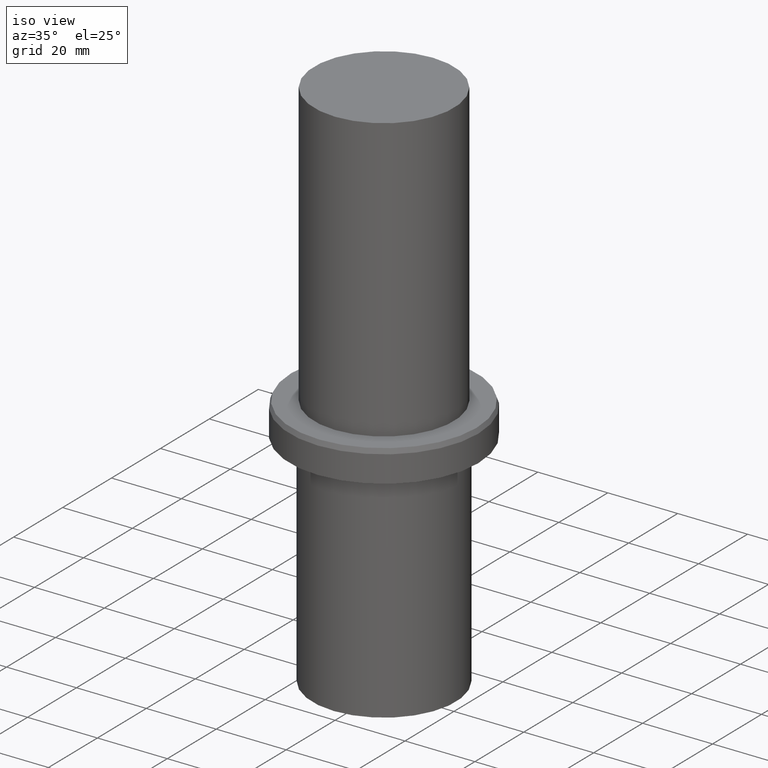
[diagram: clean part render]
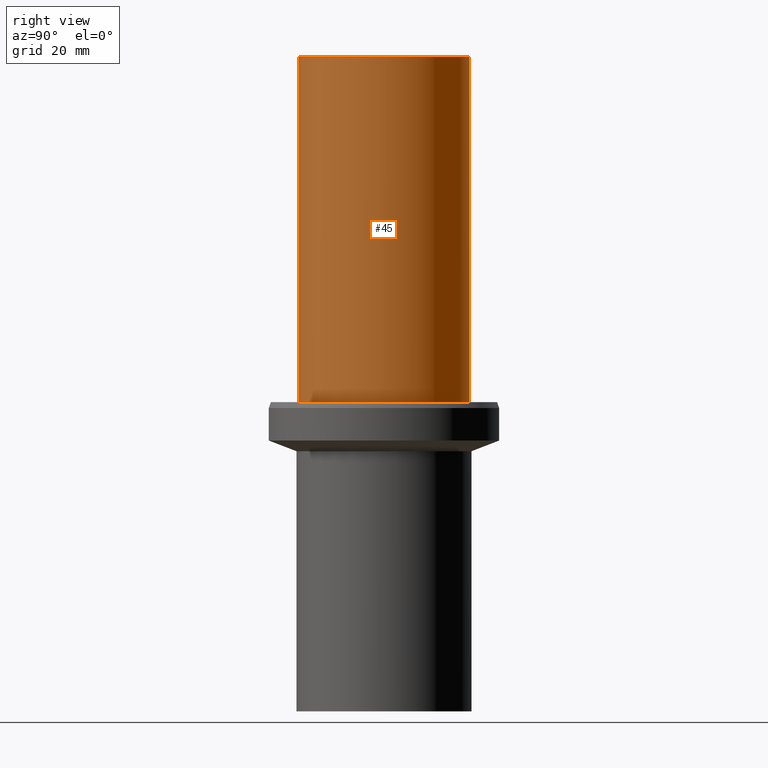
[diagram: tour spotlight — one face highlighted and labeled with its STEP entity id]
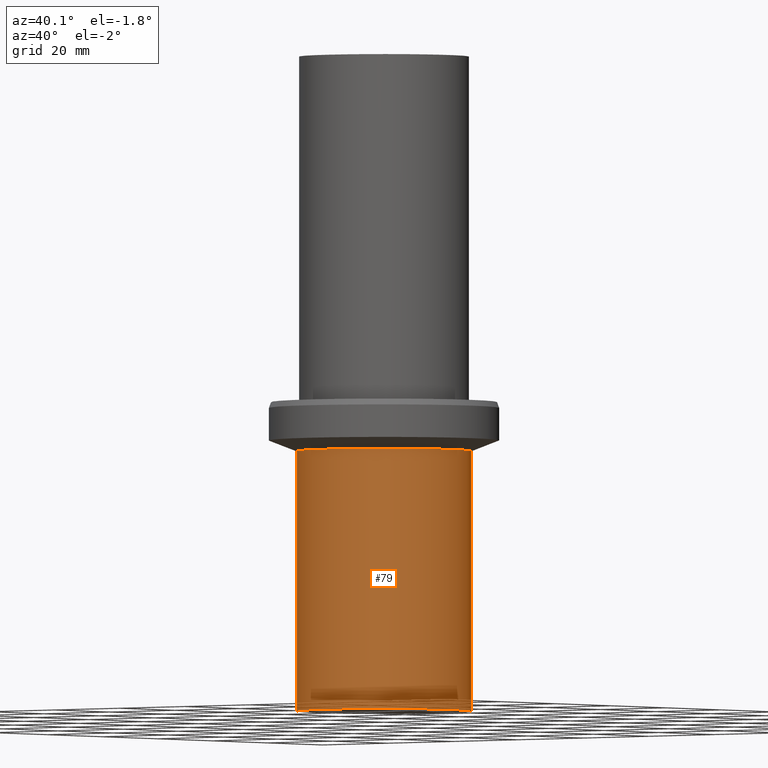
[diagram: tour spotlight — one face highlighted and labeled with its STEP entity id]
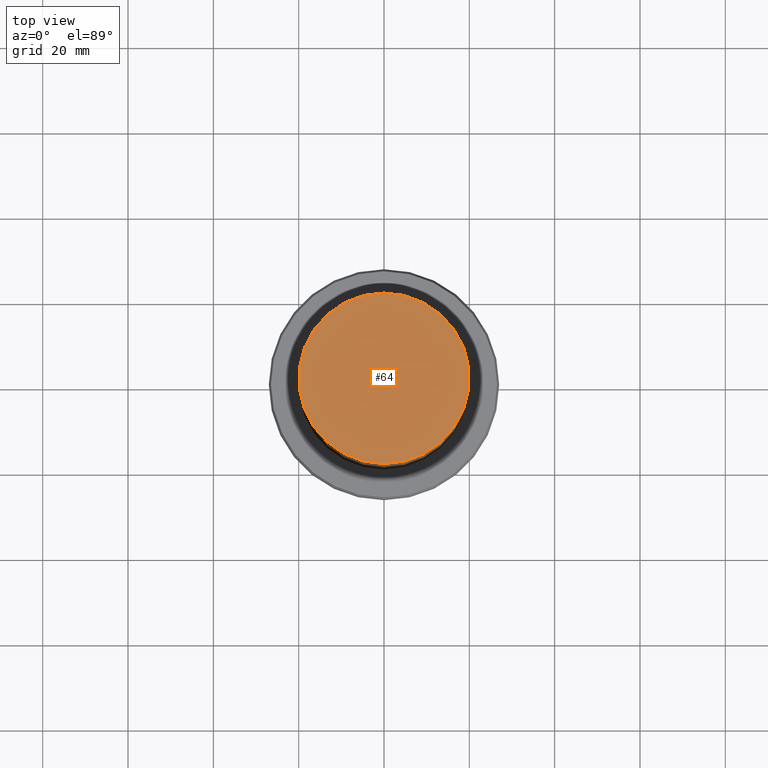
[diagram: tour spotlight — one face highlighted and labeled with its STEP entity id]
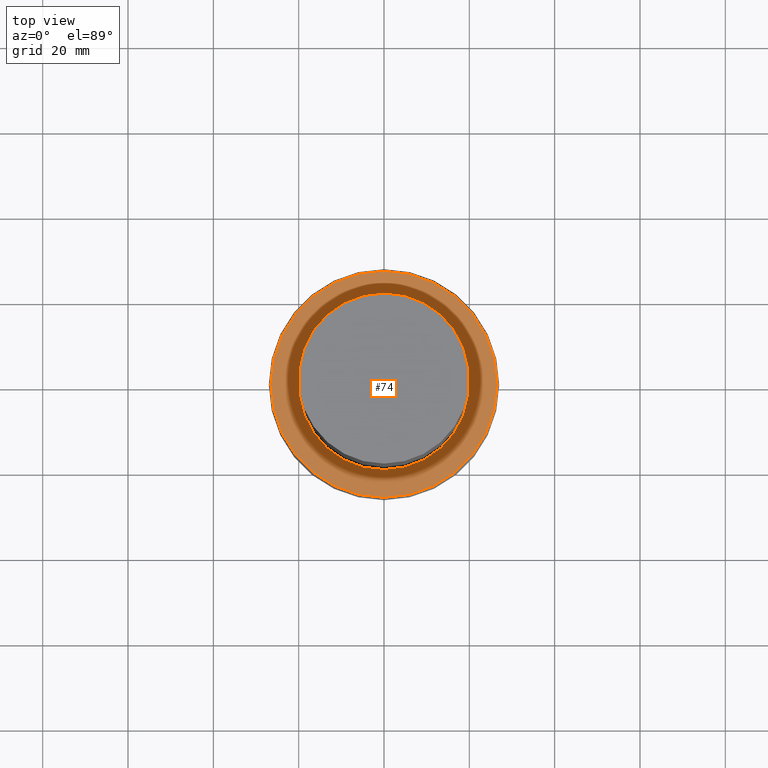
[diagram: tour spotlight — one face highlighted and labeled with its STEP entity id]
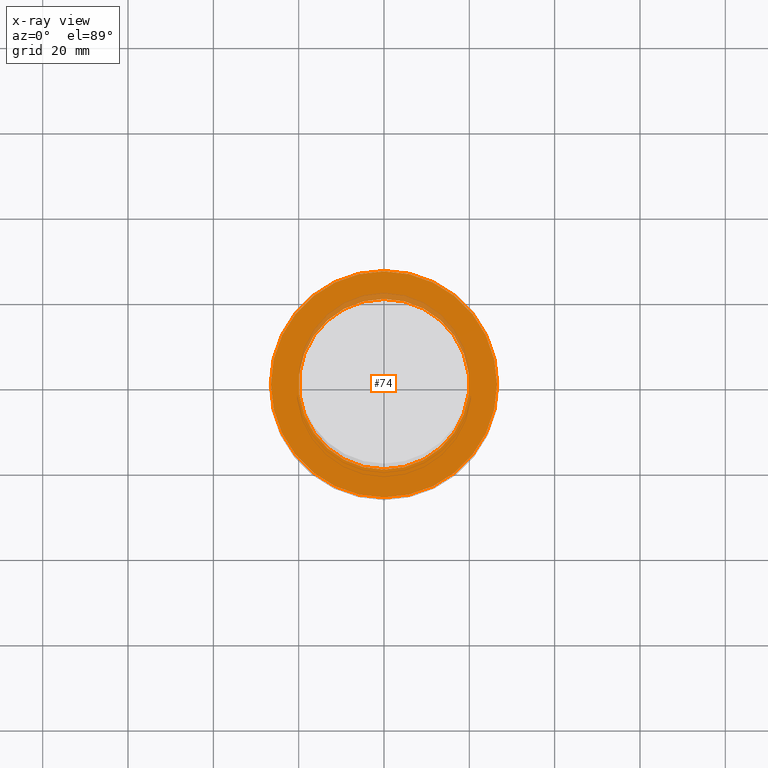
[diagram: x-ray of the same camera — body ghosted, this tour face saturated]
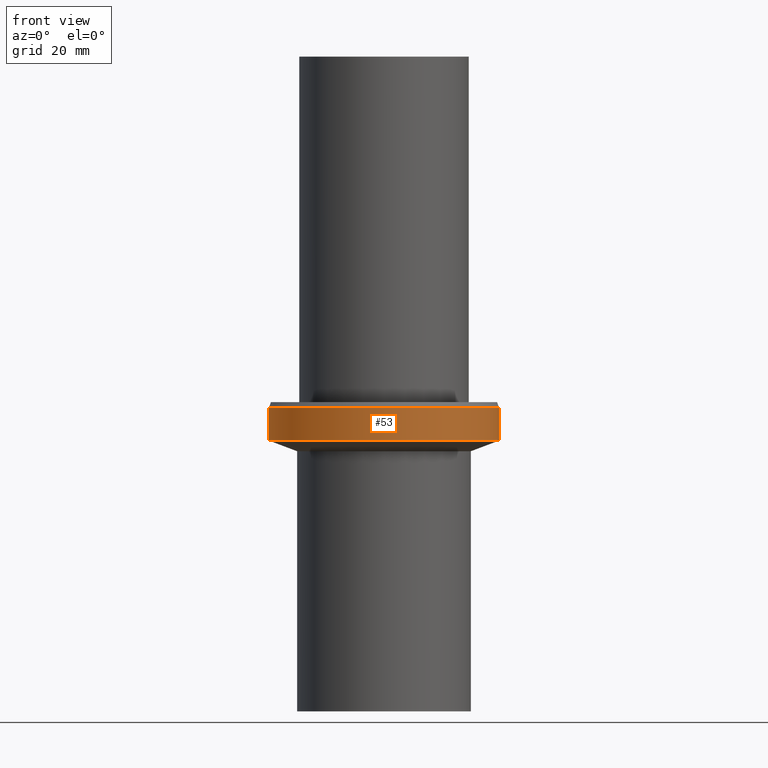
[diagram: tour spotlight — one face highlighted and labeled with its STEP entity id]
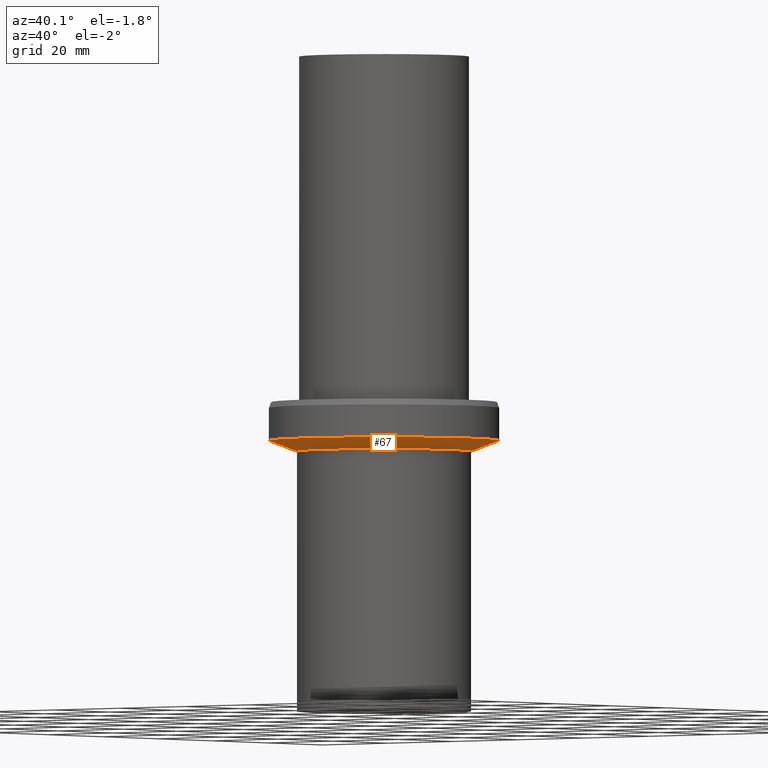
[diagram: tour spotlight — one face highlighted and labeled with its STEP entity id]
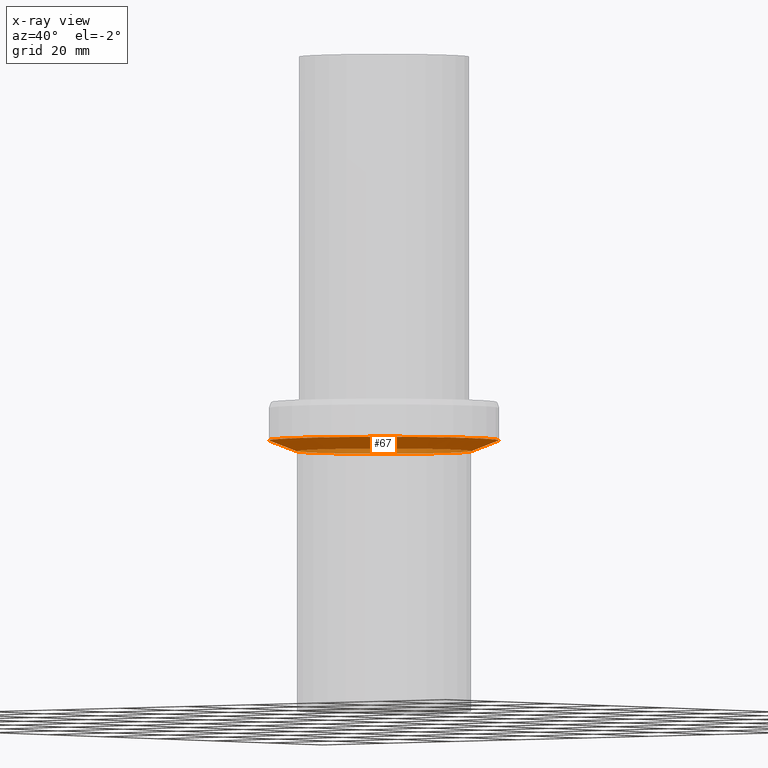
[diagram: x-ray of the same camera — body ghosted, this tour face saturated]
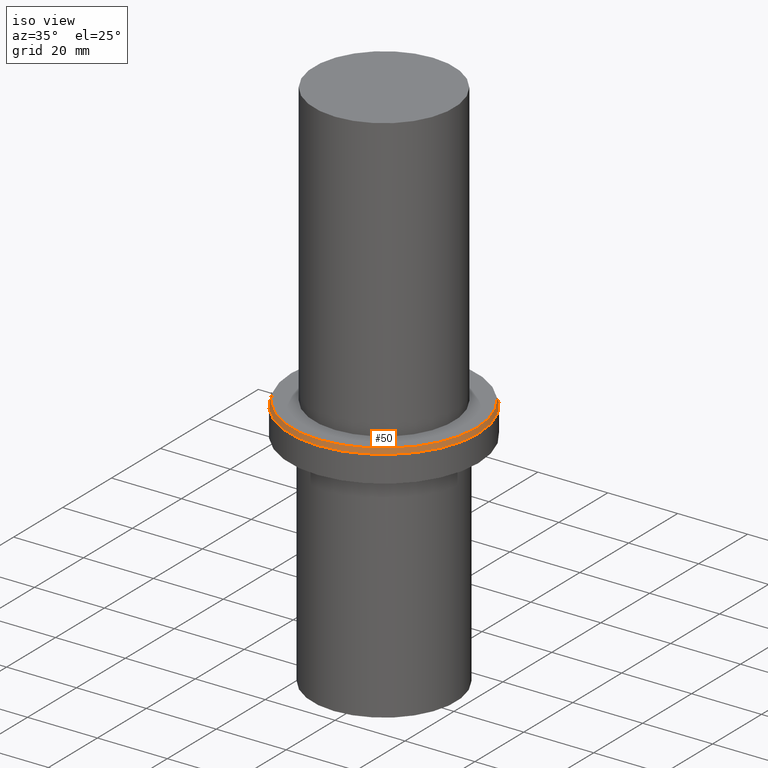
[diagram: tour spotlight — one face highlighted and labeled with its STEP entity id]
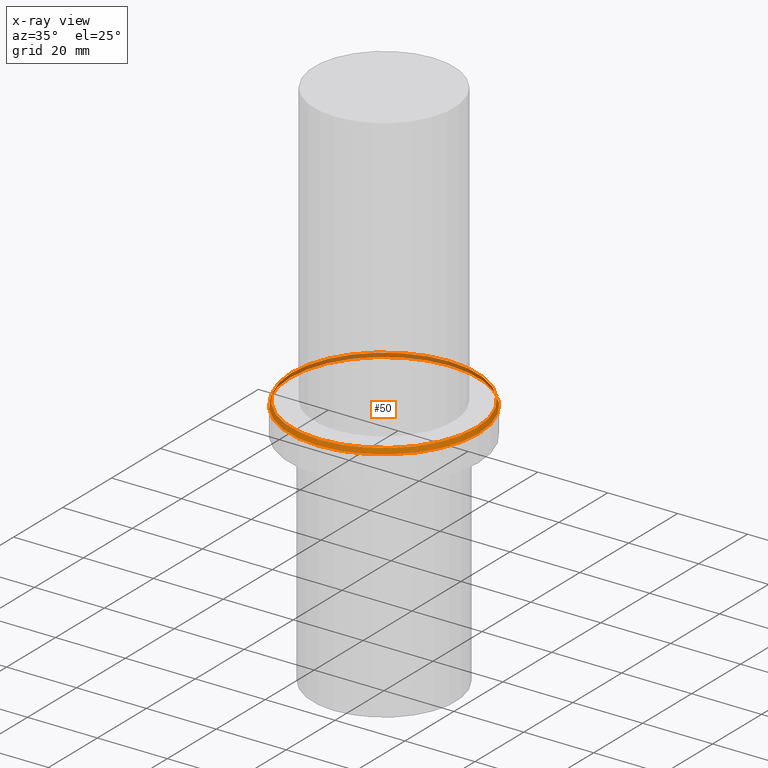
[diagram: x-ray of the same camera — body ghosted, this tour face saturated]
A machine part: a face-by-face anatomy tour. The part has 8 B-rep faces; the first image is the clean iso view, then the 7 largest visible faces are spotlighted one at a time (largest first), each with its STEP entity span.

Face 1 — right view, entity #45. In plain terms, the highlighted cylindrical surface (bore or boss wall) has radius 20 mm, axis along (0, 0, -1).
Definition (entity closure, byte-faithful):
#40=EDGE_CURVE('Unnamed[1]',#97,#97,#98,.T.);
#42=EDGE_CURVE('Unnamed[1]',#100,#100,#101,.T.);
#45=ADVANCED_FACE('Unnamed[1]',(#104,#105),#106,.T.);
#97=VERTEX_POINT('',#166);
#98=CIRCLE('',#167,20.0000000000027);
#100=VERTEX_POINT('',#170);
#101=CIRCLE('',#171,20.0000000000027);
#104=FACE_BOUND('',#175,.T.);
#105=FACE_BOUND('',#176,.T.);
#106=CYLINDRICAL_SURFACE('',#177,20.0000000000027);
#166=CARTESIAN_POINT('',(-9.39916418345572E-015,20.0000000000027,153.499999999996));
#167=AXIS2_PLACEMENT_3D('',#242,#243,#244);
#170=CARTESIAN_POINT('',(-4.439344646909E-015,20.0000000000027,72.4999999999974));
#171=AXIS2_PLACEMENT_3D('',#245,#246,#247);
#175=EDGE_LOOP('',(#249));
#176=EDGE_LOOP('',(#250));
#177=AXIS2_PLACEMENT_3D('',#251,#252,#253);
#242=CARTESIAN_POINT('',(-9.39916418345572E-015,-1.87983283669114E-014,153.499999999996));
#243=DIRECTION('',(6.12323399573677E-017,1.22464679914744E-016,-1.0));
#244=DIRECTION('',(-1.23259516440789E-032,1.0,1.22464679914744E-016));
#245=CARTESIAN_POINT('',(-4.439344646909E-015,-8.87868929381799E-015,72.4999999999974));
#246=DIRECTION('',(6.12323399573677E-017,1.22464679914744E-016,-1.0));
#247=DIRECTION('',(-1.23259516440789E-032,1.0,1.22464679914744E-016));
#249=ORIENTED_EDGE('',*,*,#42,.F.);
#250=ORIENTED_EDGE('',*,*,#40,.T.);
#251=CARTESIAN_POINT('',(-6.91925441518236E-015,-1.38385088303647E-014,112.999999999997));
#252=DIRECTION('',(6.12323399573677E-017,1.22464679914744E-016,-1.0));
#253=DIRECTION('',(-1.23259516440789E-032,1.0,1.22464679914744E-016));

Face 2 — auxiliary view, entity #79. In plain terms, the highlighted cylindrical surface (bore or boss wall) has radius 20.5 mm, axis along (0, 0, -1).
Definition (entity closure, byte-faithful):
#71=EDGE_CURVE('Unnamed[1]',#143,#143,#144,.T.);
#76=EDGE_CURVE('Unnamed[1]',#151,#151,#152,.T.);
#79=ADVANCED_FACE('Unnamed[1]',(#155,#156),#157,.T.);
#143=VERTEX_POINT('',#223);
#144=CIRCLE('',#224,20.5);
#151=VERTEX_POINT('',#233);
#152=CIRCLE('',#234,20.4999999999988);
#155=FACE_BOUND('',#238,.T.);
#156=FACE_BOUND('',#239,.T.);
#157=CYLINDRICAL_SURFACE('',#240,20.4999999999994);
#223=CARTESIAN_POINT('',(-3.73462184603165E-015,20.5,60.9910032612151));
#224=AXIS2_PLACEMENT_3D('',#292,#293,#294);
#233=CARTESIAN_POINT('',(0.0,20.4999999999988,0.0));
#234=AXIS2_PLACEMENT_3D('',#301,#302,#303);
#238=EDGE_LOOP('',(#305));
#239=EDGE_LOOP('',(#306));
#240=AXIS2_PLACEMENT_3D('',#307,#308,#309);
#292=CARTESIAN_POINT('',(-3.73462184603164E-015,-7.46924369206329E-015,60.9910032612151));
#293=DIRECTION('',(6.12323399573677E-017,1.22464679914746E-016,-1.0));
#294=DIRECTION('',(-1.23259516440783E-032,1.0,1.22464679914746E-016));
#301=CARTESIAN_POINT('',(0.0,0.0,0.0));
#302=DIRECTION('',(6.12323399573677E-017,1.22464679914753E-016,-1.0));
#303=DIRECTION('',(-1.2325951644079E-032,1.0,1.22464679914753E-016));
#305=ORIENTED_EDGE('',*,*,#76,.F.);
#306=ORIENTED_EDGE('',*,*,#71,.T.);
#307=CARTESIAN_POINT('',(-1.86731092301582E-015,-3.73462184603164E-015,30.4955016306076));
#308=DIRECTION('',(6.12323399573677E-017,1.22464679914749E-016,-1.0));
#309=DIRECTION('',(-1.23259516440787E-032,1.0,1.22464679914749E-016));

Face 3 — top view, entity #64. In plain terms, the highlighted planar face has unit normal (-0, 0, 1).
Definition (entity closure, byte-faithful):
#40=EDGE_CURVE('Unnamed[1]',#97,#97,#98,.T.);
#64=ADVANCED_FACE('Unnamed[1]',(#132),#133,.T.);
#97=VERTEX_POINT('',#166);
#98=CIRCLE('',#167,20.0000000000027);
#132=FACE_OUTER_BOUND('',#209,.T.);
#133=PLANE('',#210);
#166=CARTESIAN_POINT('',(-9.39916418345572E-015,20.0000000000027,153.499999999996));
#167=AXIS2_PLACEMENT_3D('',#242,#243,#244);
#209=EDGE_LOOP('',(#279));
#210=AXIS2_PLACEMENT_3D('',#280,#281,#282);
#242=CARTESIAN_POINT('',(-9.39916418345572E-015,-1.87983283669114E-014,153.499999999996));
#243=DIRECTION('',(6.12323399573677E-017,1.22464679914744E-016,-1.0));
#244=DIRECTION('',(-1.23259516440789E-032,1.0,1.22464679914744E-016));
#279=ORIENTED_EDGE('',*,*,#40,.F.);
#280=CARTESIAN_POINT('',(-9.39916418345575E-015,10.0000000000013,153.499999999997));
#281=DIRECTION('',(-6.12323399573677E-017,4.81944413517655E-014,1.0));
#282=DIRECTION('',(-2.94623126417595E-030,-1.0,4.81944413517655E-014));

Face 4 — top view, entity #74. An x-ray twin of the same camera follows (body ghosted, this face saturated) — the face is partly hidden behind the body. In plain terms, the highlighted planar face has unit normal (-0, -0, 1).
Definition (entity closure, byte-faithful):
#42=EDGE_CURVE('Unnamed[1]',#100,#100,#101,.T.);
#58=EDGE_CURVE('Unnamed[1]',#124,#124,#125,.T.);
#74=ADVANCED_FACE('Unnamed[1]',(#147,#148),#149,.T.);
#100=VERTEX_POINT('',#170);
#101=CIRCLE('',#171,20.0000000000027);
#124=VERTEX_POINT('',#199);
#125=CIRCLE('',#200,26.4999999999965);
#147=FACE_OUTER_BOUND('',#228,.T.);
#148=FACE_BOUND('',#229,.T.);
#149=PLANE('',#230);
#170=CARTESIAN_POINT('',(-4.439344646909E-015,20.0000000000027,72.4999999999974));
#171=AXIS2_PLACEMENT_3D('',#245,#246,#247);
#199=CARTESIAN_POINT('',(-4.439344646909E-015,26.4999999999965,72.4999999999974));
#200=AXIS2_PLACEMENT_3D('',#270,#271,#272);
#228=EDGE_LOOP('',(#296));
#229=EDGE_LOOP('',(#297));
#230=AXIS2_PLACEMENT_3D('',#298,#299,#300);
#245=CARTESIAN_POINT('',(-4.439344646909E-015,-8.87868929381799E-015,72.4999999999974));
#246=DIRECTION('',(6.12323399573677E-017,1.22464679914744E-016,-1.0));
#247=DIRECTION('',(-1.23259516440789E-032,1.0,1.22464679914744E-016));
#270=CARTESIAN_POINT('',(-4.439344646909E-015,-8.87868929381799E-015,72.4999999999974));
#271=DIRECTION('',(6.12323399573676E-017,1.22464679914719E-016,-1.0));
#272=DIRECTION('',(-1.23259516440799E-032,1.0,1.22464679914719E-016));
#296=ORIENTED_EDGE('',*,*,#58,.F.);
#297=ORIENTED_EDGE('',*,*,#42,.T.);
#298=CARTESIAN_POINT('',(-4.439344646909E-015,23.2499999999996,72.4999999999974));
#299=DIRECTION('',(-6.12323399573677E-017,-2.03546435311683E-015,1.0));
#300=DIRECTION('',(1.29463397971922E-031,-1.0,-2.03546435311683E-015));

Face 5 — front view, entity #53. In plain terms, the highlighted cylindrical surface (bore or boss wall) has radius 27 mm, axis along (0, 0, -1).
Definition (entity closure, byte-faithful):
#47=EDGE_CURVE('Unnamed[1]',#108,#108,#109,.T.);
#53=ADVANCED_FACE('Unnamed[1]',(#117,#118),#119,.T.);
#69=EDGE_CURVE('Unnamed[1]',#140,#140,#141,.T.);
#108=VERTEX_POINT('',#180);
#109=CIRCLE('',#181,26.9999999999945);
#117=FACE_BOUND('',#191,.T.);
#118=FACE_BOUND('',#192,.T.);
#119=CYLINDRICAL_SURFACE('',#193,26.9999999999945);
#140=VERTEX_POINT('',#219);
#141=CIRCLE('',#220,26.9999999999945);
#180=CARTESIAN_POINT('',(-3.88825358729252E-015,26.9999999999945,63.4999999999946));
#181=AXIS2_PLACEMENT_3D('',#254,#255,#256);
#191=EDGE_LOOP('',(#264));
#192=EDGE_LOOP('',(#265));
#193=AXIS2_PLACEMENT_3D('',#266,#267,#268);
#219=CARTESIAN_POINT('',(-4.3552274112226E-015,26.9999999999945,71.1262612902737));
#220=AXIS2_PLACEMENT_3D('',#289,#290,#291);
#254=CARTESIAN_POINT('',(-3.88825358729252E-015,-7.77650717458503E-015,63.4999999999946));
#255=DIRECTION('',(6.12323399573677E-017,1.22464679914718E-016,-1.0));
#256=DIRECTION('',(-1.23259516440775E-032,1.0,1.22464679914718E-016));
#264=ORIENTED_EDGE('',*,*,#47,.F.);
#265=ORIENTED_EDGE('',*,*,#69,.T.);
#266=CARTESIAN_POINT('',(-4.12174049925756E-015,-8.24348099851511E-015,67.3131306451342));
#267=DIRECTION('',(6.12323399573677E-017,1.22464679914718E-016,-1.0));
#268=DIRECTION('',(-1.23259516440775E-032,1.0,1.22464679914718E-016));
#289=CARTESIAN_POINT('',(-4.3552274112226E-015,-8.7104548224452E-015,71.1262612902737));
#290=DIRECTION('',(6.12323399573677E-017,1.22464679914718E-016,-1.0));
#291=DIRECTION('',(-1.23259516440775E-032,1.0,1.22464679914718E-016));

Face 6 — auxiliary view, entity #67. An x-ray twin of the same camera follows (body ghosted, this face saturated) — the face is partly hidden behind the body. In plain terms, the highlighted conical surface has half-angle 68.893 deg.
Definition (entity closure, byte-faithful):
#47=EDGE_CURVE('Unnamed[1]',#108,#108,#109,.T.);
#67=ADVANCED_FACE('Unnamed[1]',(#136,#137),#138,.T.);
#71=EDGE_CURVE('Unnamed[1]',#143,#143,#144,.T.);
#108=VERTEX_POINT('',#180);
#109=CIRCLE('',#181,26.9999999999945);
#136=FACE_BOUND('',#214,.T.);
#137=FACE_BOUND('',#215,.T.);
#138=CONICAL_SURFACE('',#216,23.7499999999973,1.20241730396966);
#143=VERTEX_POINT('',#223);
#144=CIRCLE('',#224,20.5);
#180=CARTESIAN_POINT('',(-3.88825358729252E-015,26.9999999999945,63.4999999999946));
#181=AXIS2_PLACEMENT_3D('',#254,#255,#256);
#214=EDGE_LOOP('',(#284));
#215=EDGE_LOOP('',(#285));
#216=AXIS2_PLACEMENT_3D('',#286,#287,#288);
#223=CARTESIAN_POINT('',(-3.73462184603165E-015,20.5,60.9910032612151));
#224=AXIS2_PLACEMENT_3D('',#292,#293,#294);
#254=CARTESIAN_POINT('',(-3.88825358729252E-015,-7.77650717458503E-015,63.4999999999946));
#255=DIRECTION('',(6.12323399573677E-017,1.22464679914718E-016,-1.0));
#256=DIRECTION('',(-1.23259516440775E-032,1.0,1.22464679914718E-016));
#284=ORIENTED_EDGE('',*,*,#71,.F.);
#285=ORIENTED_EDGE('',*,*,#47,.T.);
#286=CARTESIAN_POINT('',(-3.81143771666208E-015,-7.62287543332416E-015,62.2455016306048));
#287=DIRECTION('',(-6.12323399573677E-017,-1.22464679914747E-016,1.0));
#288=DIRECTION('',(-1.23259516440797E-032,1.0,1.22464679914747E-016));
#292=CARTESIAN_POINT('',(-3.73462184603164E-015,-7.46924369206329E-015,60.9910032612151));
#293=DIRECTION('',(6.12323399573677E-017,1.22464679914746E-016,-1.0));
#294=DIRECTION('',(-1.23259516440783E-032,1.0,1.22464679914746E-016));

Face 7 — iso view, entity #50. An x-ray twin of the same camera follows (body ghosted, this face saturated) — the face is partly hidden behind the body. In plain terms, the highlighted conical surface has half-angle 20 deg.
Definition (entity closure, byte-faithful):
#50=ADVANCED_FACE('Unnamed[1]',(#112,#113),#114,.T.);
#58=EDGE_CURVE('Unnamed[1]',#124,#124,#125,.T.);
#69=EDGE_CURVE('Unnamed[1]',#140,#140,#141,.T.);
#112=FACE_BOUND('',#185,.T.);
#113=FACE_BOUND('',#186,.T.);
#114=CONICAL_SURFACE('',#187,26.7499999999955,0.349065850398426);
#124=VERTEX_POINT('',#199);
#125=CIRCLE('',#200,26.4999999999965);
#140=VERTEX_POINT('',#219);
#141=CIRCLE('',#220,26.9999999999945);
#185=EDGE_LOOP('',(#258));
#186=EDGE_LOOP('',(#259));
#187=AXIS2_PLACEMENT_3D('',#260,#261,#262);
#199=CARTESIAN_POINT('',(-4.439344646909E-015,26.4999999999965,72.4999999999974));
#200=AXIS2_PLACEMENT_3D('',#270,#271,#272);
#219=CARTESIAN_POINT('',(-4.3552274112226E-015,26.9999999999945,71.1262612902737));
#220=AXIS2_PLACEMENT_3D('',#289,#290,#291);
#258=ORIENTED_EDGE('',*,*,#69,.F.);
#259=ORIENTED_EDGE('',*,*,#58,.T.);
#260=CARTESIAN_POINT('',(-4.3972860290658E-015,-8.7945720581316E-015,71.8131306451356));
#261=DIRECTION('',(6.12323399573677E-017,1.22464679914719E-016,-1.0));
#262=DIRECTION('',(-1.2325951644077E-032,1.0,1.22464679914719E-016));
#270=CARTESIAN_POINT('',(-4.439344646909E-015,-8.87868929381799E-015,72.4999999999974));
#271=DIRECTION('',(6.12323399573676E-017,1.22464679914719E-016,-1.0));
#272=DIRECTION('',(-1.23259516440799E-032,1.0,1.22464679914719E-016));
#289=CARTESIAN_POINT('',(-4.3552274112226E-015,-8.7104548224452E-015,71.1262612902737));
#290=DIRECTION('',(6.12323399573677E-017,1.22464679914718E-016,-1.0));
#291=DIRECTION('',(-1.23259516440775E-032,1.0,1.22464679914718E-016));